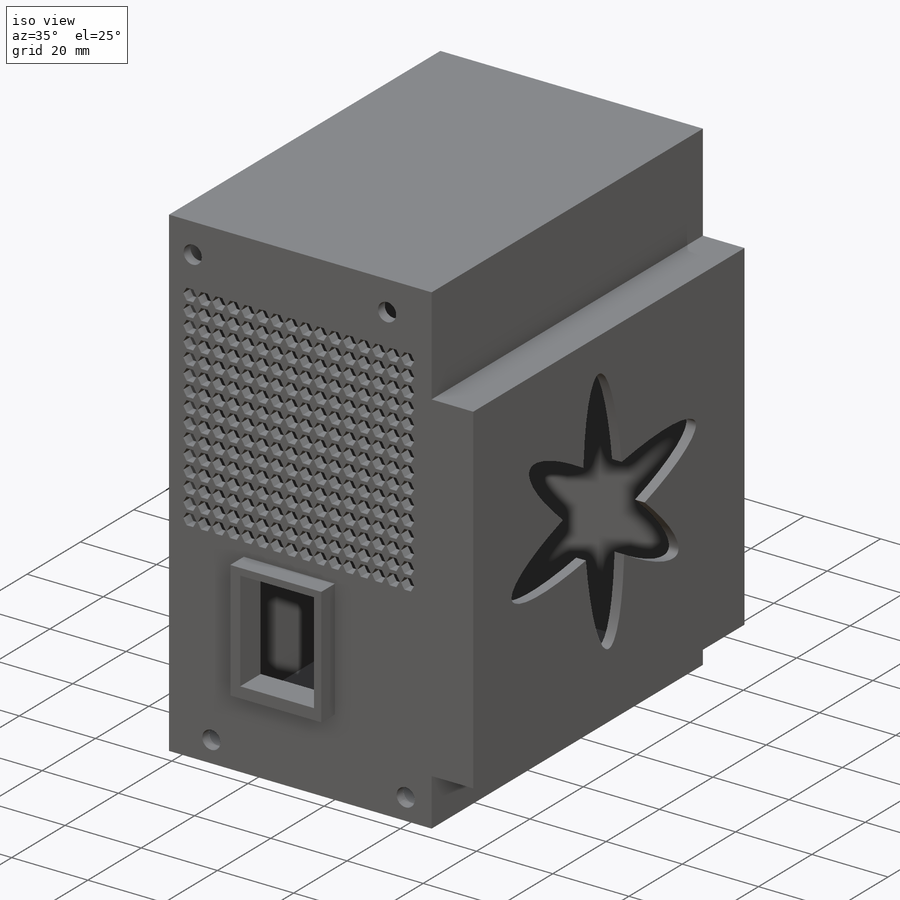
[diagram: iso view]
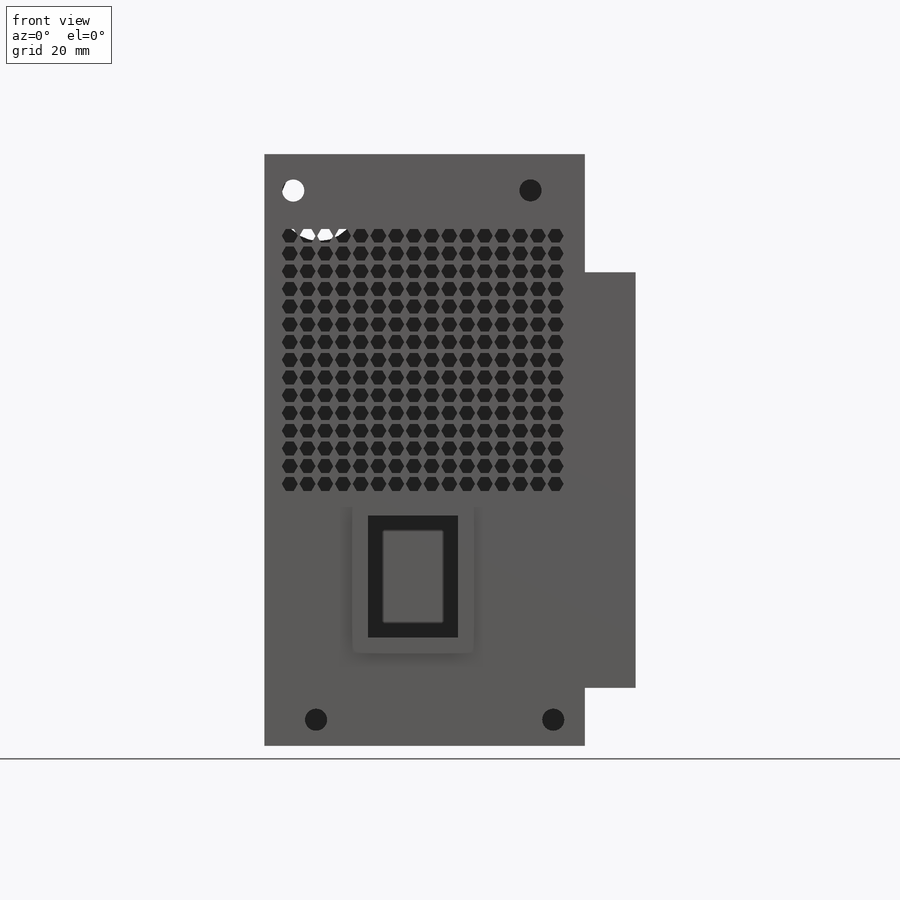
[diagram: front view]
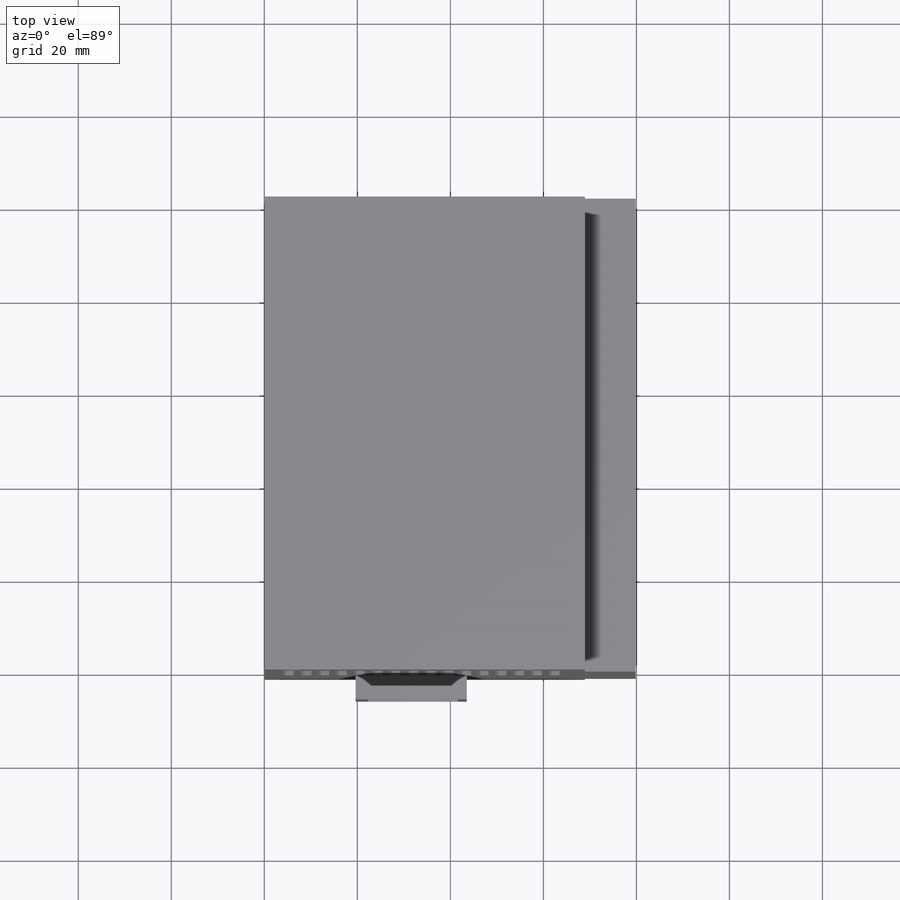
[diagram: top view]
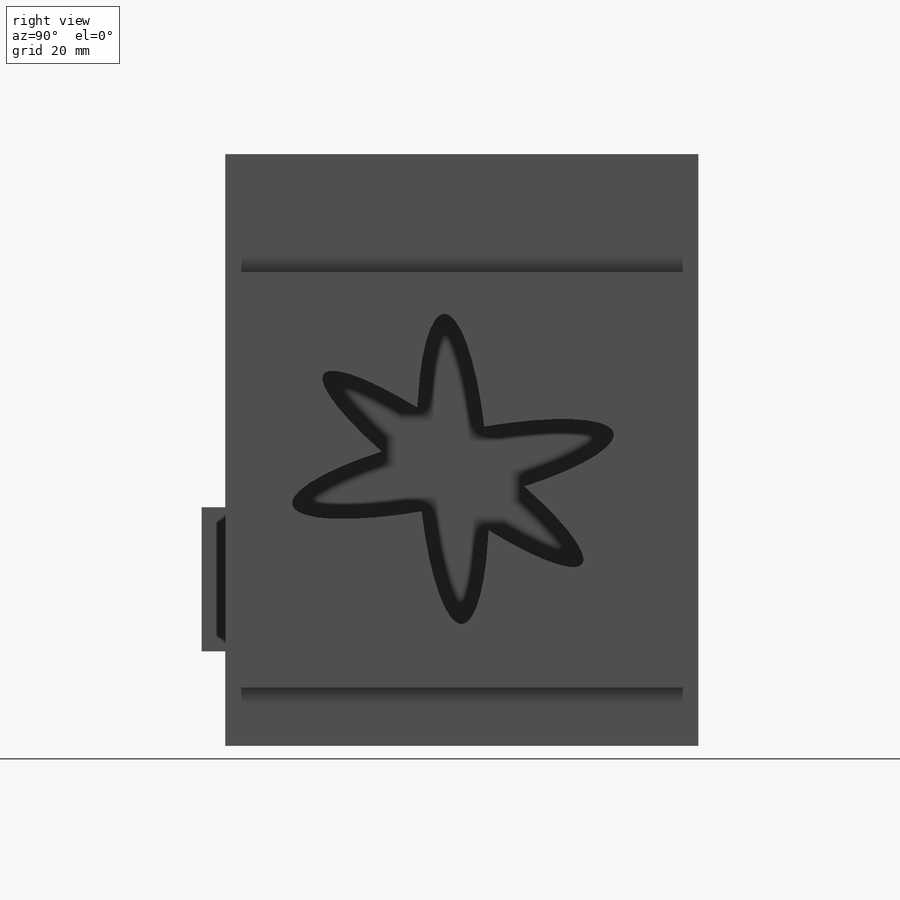
[diagram: right view]
SOLIDWORKS PART (.sldprt)
format: sldprt  version: not decoded by parser v0  size: 1,814,528 bytes
history: native  units: mm
features: sketch x13, extrude x6, cut_extrude x4, material x1, hole x1 (+16 scaffold rows collapsed)
feature tree (41):
  scaffold x16  (default folders/planes/origin — collapsed)
  material  "Material <not specified>"
  sketch  "Sketch1"  dims[D1=127.22mm D2=101.7mm]
  extrude  "Boss-Extrude2"  Depth=2.54mm
  sketch  "Sketch3"  dims[D1=2.54mm]
  extrude  "Boss-Extrude4"  Depth=63.84mm
  sketch  "Sketch4"  dims[D1=25.4mm D2=12.458mm]
  extrude  "Boss-Extrude6"  Depth=2.54mm
  sketch  "Sketch6"  dims[D1=2.54mm]
  extrude  "Boss-Extrude8"  Depth=10.91946mm
  sketch  "Sketch7"
  extrude  "Boss-Extrude9"  Depth=2.54mm
  sketch  "Sketch8"  dims[D1=30.988mm D2=23.876mm D3=36.322mm D4=20.32mm]
  extrude  "Boss-Extrude10"  Depth=5.08mm
  sketch  "Sketch9"  dims[c1.D1=4.7625mm c1.D3=~1.921409mm c1.D8=4.7625mm c1.D9=4.7625mm c2.D1=5.588mm c2.D2=8.5344mm c2.D3=~18.589498mm c2.D4=5.588mm c2.D5=~50.999898mm c2.D6=~50.999898mm c2.D7=113.8mm]
  sketch  "Sketch10"
  sketch  "Sketch11"  dims[c1.D1=~152.29754deg c2.D1=16.0 c2.D2=15.0]
  cut_extrude  "Cut-Extrude2"  Depth=2.54mm
  cut_extrude  "Cut-Extrude3"  Depth=2.54mm
  sketch  "Sketch12"
  cut_extrude  "Cut-Extrude4"  Depth=26mm
  sketch  "Sketch13"
  cut_extrude  "Cut-Extrude5"  Depth=12.7mm
  hole  "3/16 (0.1875) Diameter Hole1"  Diameter=4.7625mm Depth=6.096mm
  sketch  "Sketch15"
  sketch  "Sketch14"  dims[hole-wizard template sketch: 47 standard entries collapsed; hole parameters kept: c15.Hole Depth=6.096mm c15.D3=~14.816244mm c15.Drill Angle=118.0deg]
decode coverage: 19 of 24 modeling features carry decoded parameters
note: ~ marks probable driven/reference dimensions
note: suppression state not decoded; provenance and decode notes live in map.json
